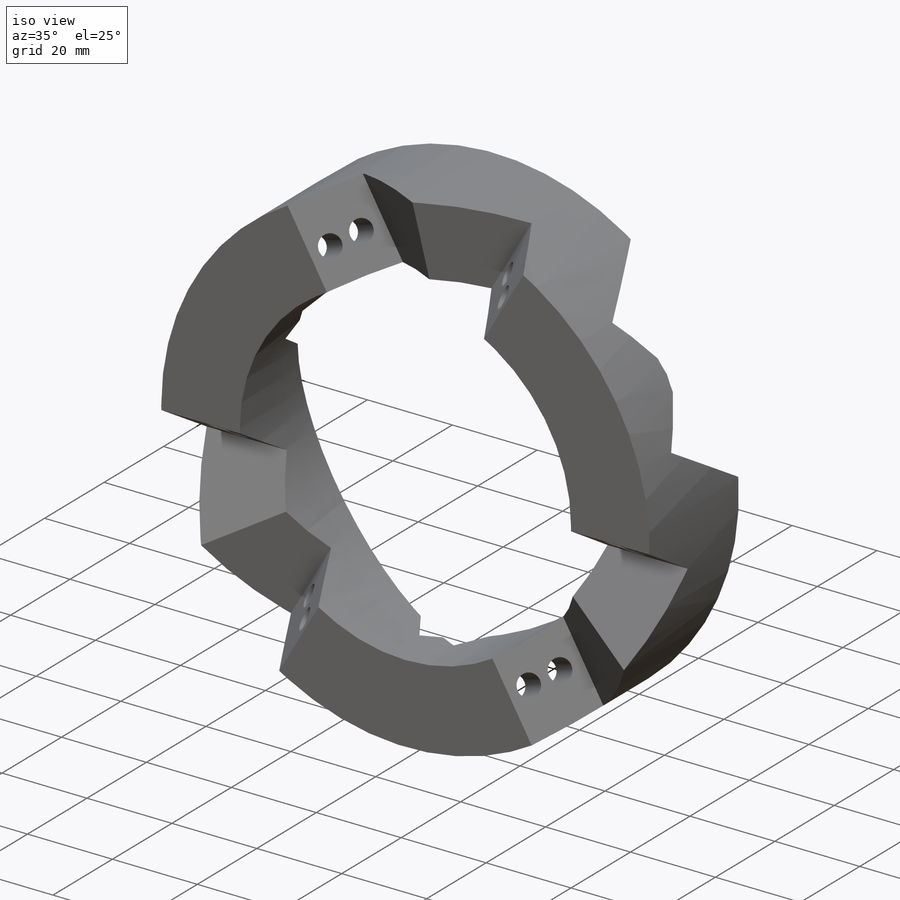
[diagram: iso view]
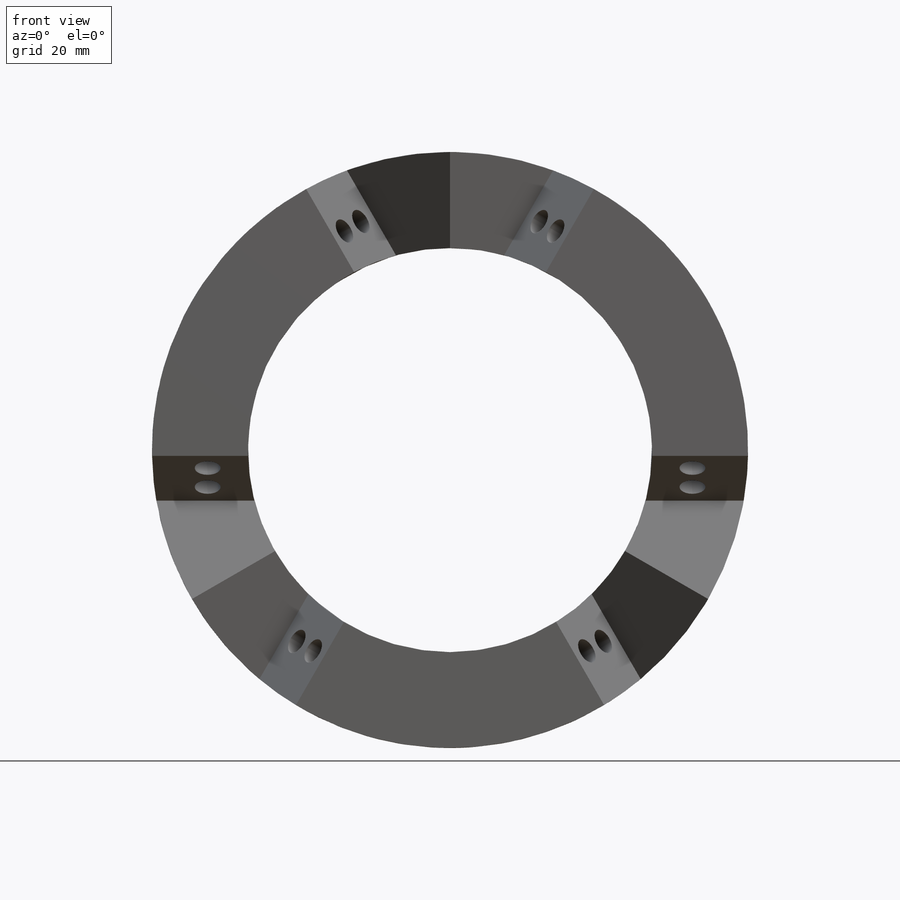
[diagram: front view]
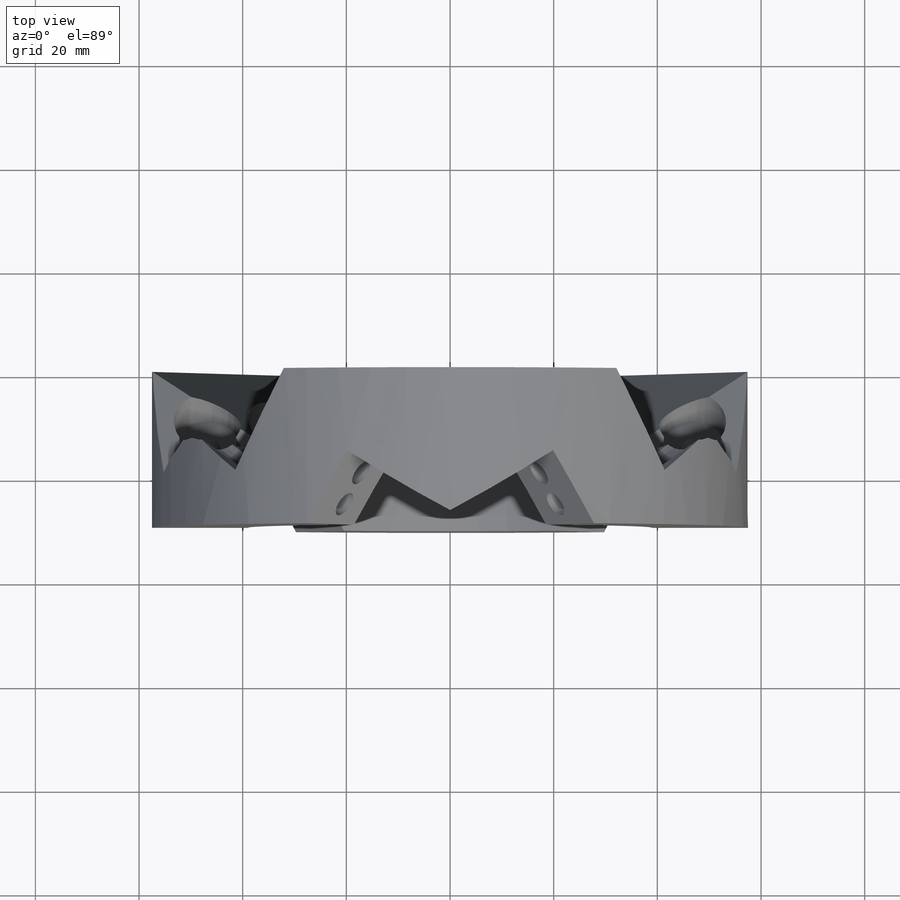
[diagram: top view]
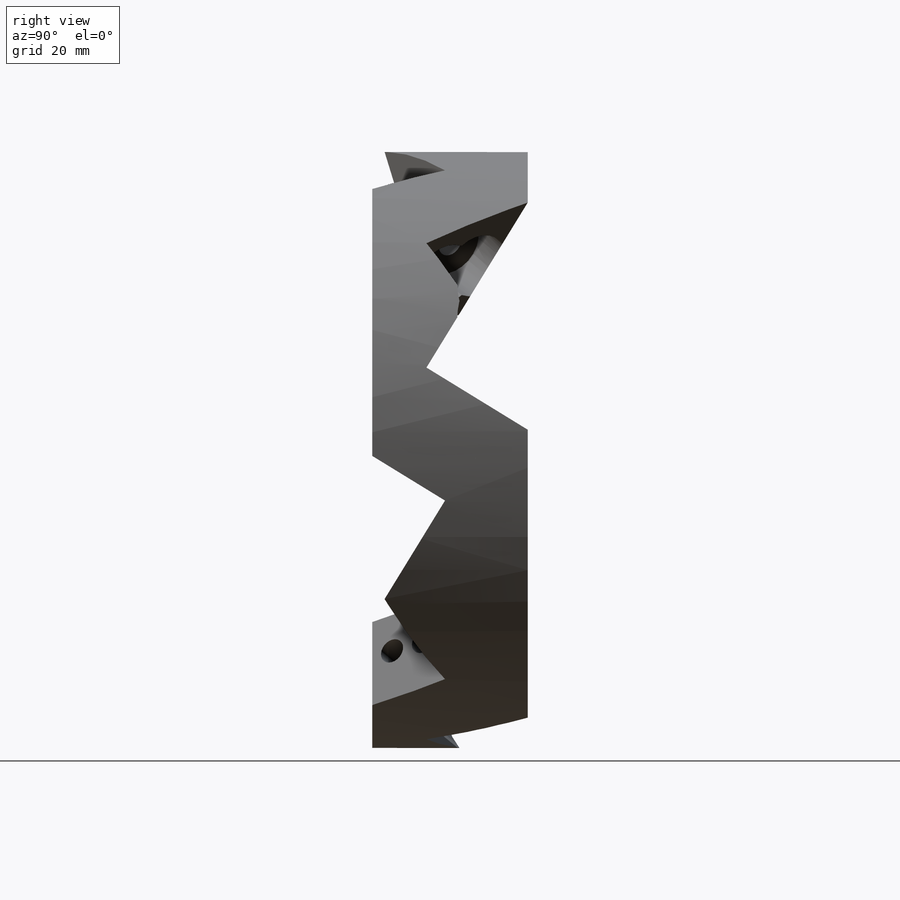
[diagram: right view]
SOLIDWORKS PART (.sldprt)
format: sldprt  version: not decoded by parser v0  size: 542,720 bytes
history: native  units: mm
features: sketch x10, cut_extrude x9, extrude x6, plane x3, pattern_circular x3, mirror x2, material x1 (+9 scaffold rows collapsed)
feature tree (43):
  scaffold x9  (default folders/planes/origin — collapsed)
  material  "Matériau <non spécifié>"
  plane  "Plan de face"
  plane  "Plan de dessus"
  plane  "Plan de droite"
  sketch  "Esquisse1"  dims[D1=115.0mm D2=78.0mm]
  extrude  "Boss.-Extru.1"  Depth=30mm
  extrude  "Cellule_2kg<4>@Capteur 6 axes V5"  [1 undecoded]
  extrude  "Cellule_2kg<3>@Capteur 6 axes V5"  [1 undecoded]
  extrude  "Cellule_2kg<6>@Capteur 6 axes V5"  [1 undecoded]
  extrude  "Cellule_2kg<5>@Capteur 6 axes V5"  [1 undecoded]
  extrude  "Cellule_2kg<1>@Capteur 6 axes V5"  [1 undecoded]
  sketch  "Esquisse2"  dims[D1=0.0mm]
  cut_extrude  "Enlèv. mat.-Extru.1"  [1 undecoded]
  sketch  "Esquisse3"  dims[D1=0.0mm]
  cut_extrude  "Enlèv. mat.-Extru.2"  [1 undecoded]
  sketch  "Esquisse4"  dims[D1=0.0mm]
  cut_extrude  "Enlèv. mat.-Extru.3"  [1 undecoded]
  sketch  "Esquisse5"  dims[D1=0.0mm]
  cut_extrude  "Enlèv. mat.-Extru.4"  [1 undecoded]
  sketch  "Esquisse6"  dims[D1=0.0mm]
  cut_extrude  "Enlèv. mat.-Extru.5"  [1 undecoded]
  sketch  "Esquisse7"  dims[D1=0.0mm]
  cut_extrude  "Enlèv. mat.-Extru.6"  [1 undecoded]
  sketch  "Esquisse8"  dims[D1=0.0mm]
  cut_extrude  "Enlèv. mat.-Extru.7"  Depth=20mm
  pattern_circular  "Répétition circulaire3"  Count=3 Angle=360deg
  mirror  "Symétrie2"
  pattern_circular  "Répétition circulaire1"  Count=3 Angle=360deg
  sketch  "Esquisse9"  dims[D1=0.5mm D2=0.5mm]
  cut_extrude  "Enlèv. mat.-Extru.8"  [1 undecoded]
  sketch  "Esquisse10"  dims[D1=4.0mm D2=4.0mm]
  cut_extrude  "Enlèv. mat.-Extru.9"  Depth=10mm
  mirror  "Symétrie1"
  pattern_circular  "Répétition circulaire2"  Count=3 Angle=360deg
decode coverage: 16 of 30 modeling features carry decoded parameters
note: 12 parameter values undecoded
summary: no parameter record found for 12 features
note: suppression state not decoded; provenance and decode notes live in map.json
